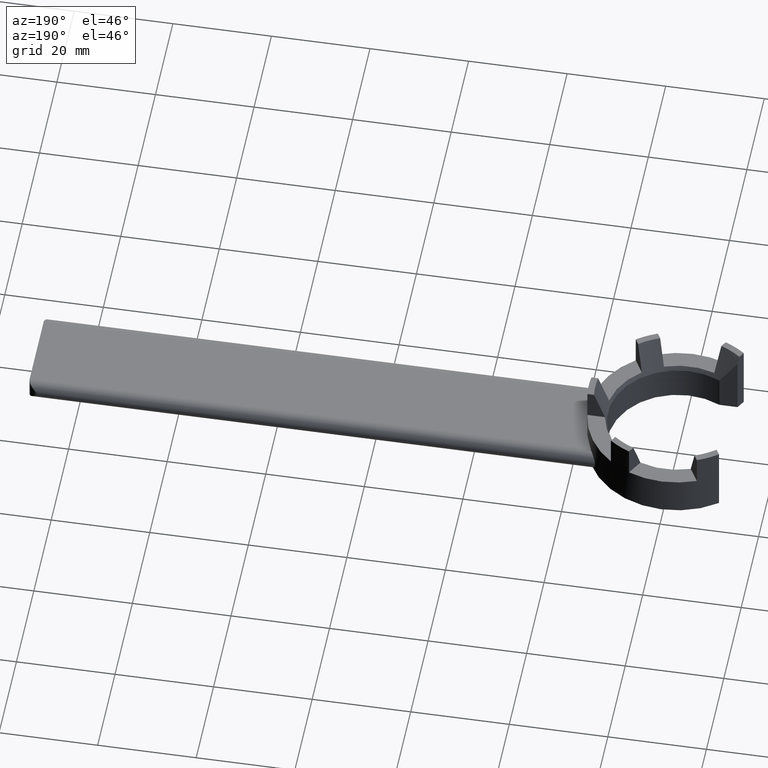
[diagram: clean part render]
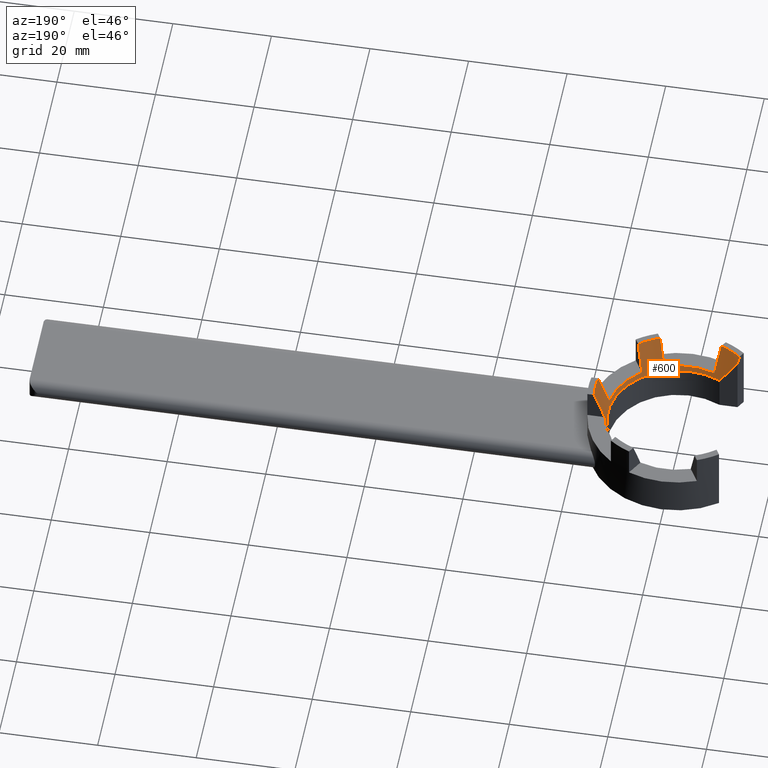
[diagram: same view with one face highlighted and labeled with its STEP entity id]
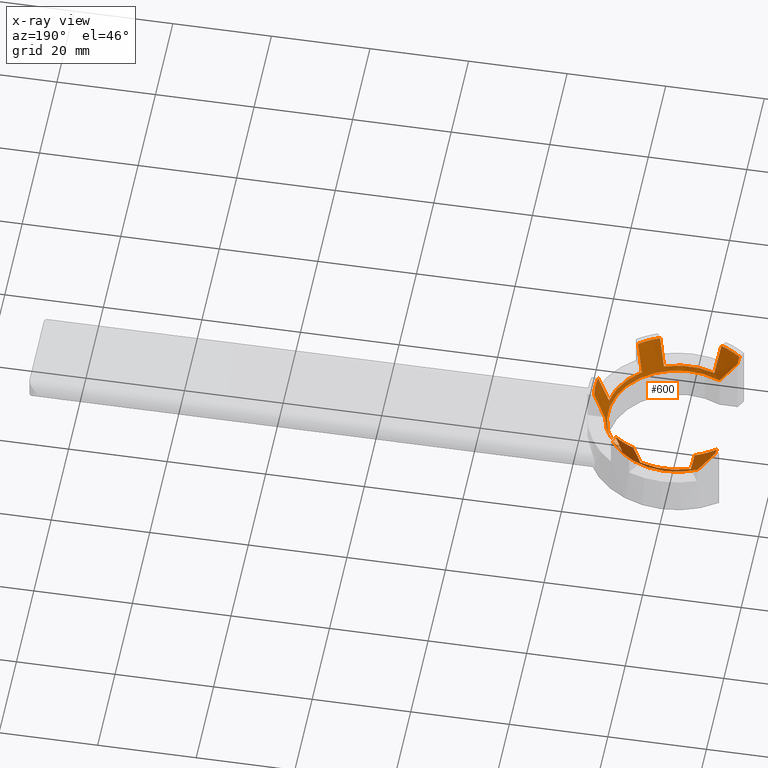
[diagram: x-ray of the same camera — body ghosted, the highlighted face saturated]
A machine part, auxiliary view. The second image highlights one B-rep face of the part: STEP entity #600.
The next image is the same camera in x-ray: the body ghosted, the highlighted face saturated — about 0% of this face is hidden behind the body in this view.
In plain terms, the highlighted conical surface has half-angle 20 deg.
Its self-contained STEP definition (entity closure, byte-faithful):
#96=CIRCLE('',#1077,14.1);
#97=CIRCLE('',#1078,16.65);
#98=CIRCLE('',#1079,14.4661785944028);
#99=CIRCLE('',#1080,16.65);
#100=CIRCLE('',#1081,14.4661785944028);
#101=CIRCLE('',#1082,16.65);
#102=CIRCLE('',#1083,14.4661785944028);
#103=CIRCLE('',#1084,16.65);
#104=CIRCLE('',#1085,14.4661785944028);
#105=CIRCLE('',#1086,16.65);
#119=(
BOUNDED_CURVE()
B_SPLINE_CURVE(2,(#838,#839,#840),.UNSPECIFIED.,.F.,.U.)
B_SPLINE_CURVE_WITH_KNOTS((3,3),(1.16521965065809,7.5947729396406),
 .UNSPECIFIED.)
CURVE()
GEOMETRIC_REPRESENTATION_ITEM()
RATIONAL_B_SPLINE_CURVE((1.00358761468134,1.01213205879889,1.0057386203851))
REPRESENTATION_ITEM('')
);
#120=(
BOUNDED_CURVE()
B_SPLINE_CURVE(2,(#845,#846,#847),.UNSPECIFIED.,.F.,.U.)
B_SPLINE_CURVE_WITH_KNOTS((3,3),(2.09105406984365,8.52060735882623),
 .UNSPECIFIED.)
CURVE()
GEOMETRIC_REPRESENTATION_ITEM()
RATIONAL_B_SPLINE_CURVE((1.0057386203851,1.01213205879887,1.00358761468133))
REPRESENTATION_ITEM('')
);
#121=(
BOUNDED_CURVE()
B_SPLINE_CURVE(2,(#849,#850,#851),.UNSPECIFIED.,.F.,.U.)
B_SPLINE_CURVE_WITH_KNOTS((3,3),(1.30238798375389,2.97414450343107),
 .UNSPECIFIED.)
CURVE()
GEOMETRIC_REPRESENTATION_ITEM()
RATIONAL_B_SPLINE_CURVE((1.00044412135791,1.00060787198154,1.00046024894192))
REPRESENTATION_ITEM('')
);
#122=(
BOUNDED_CURVE()
B_SPLINE_CURVE(2,(#855,#856,#857),.UNSPECIFIED.,.F.,.U.)
B_SPLINE_CURVE_WITH_KNOTS((3,3),(1.23235449962897,7.61757274697505),
 .UNSPECIFIED.)
CURVE()
GEOMETRIC_REPRESENTATION_ITEM()
RATIONAL_B_SPLINE_CURVE((1.00120263872427,1.00382930391001,1.00138905098697))
REPRESENTATION_ITEM('')
);
#123=(
BOUNDED_CURVE()
B_SPLINE_CURVE(2,(#861,#862,#863),.UNSPECIFIED.,.F.,.U.)
B_SPLINE_CURVE_WITH_KNOTS((3,3),(1.46726711424918,7.85248536160198),
 .UNSPECIFIED.)
CURVE()
GEOMETRIC_REPRESENTATION_ITEM()
RATIONAL_B_SPLINE_CURVE((1.00138905098491,1.00382930390449,1.00120263872258))
REPRESENTATION_ITEM('')
);
#124=(
BOUNDED_CURVE()
B_SPLINE_CURVE(2,(#867,#868,#869),.UNSPECIFIED.,.F.,.U.)
B_SPLINE_CURVE_WITH_KNOTS((3,3),(1.46726711426512,7.85248536161977),
 .UNSPECIFIED.)
CURVE()
GEOMETRIC_REPRESENTATION_ITEM()
RATIONAL_B_SPLINE_CURVE((1.00138905098606,1.00382930390763,1.00120263872355))
REPRESENTATION_ITEM('')
);
#125=(
BOUNDED_CURVE()
B_SPLINE_CURVE(2,(#873,#874,#875),.UNSPECIFIED.,.F.,.U.)
B_SPLINE_CURVE_WITH_KNOTS((3,3),(1.23235449952249,7.61757274687085),
 .UNSPECIFIED.)
CURVE()
GEOMETRIC_REPRESENTATION_ITEM()
RATIONAL_B_SPLINE_CURVE((1.00120263872895,1.0038293039252,1.00138905099256))
REPRESENTATION_ITEM('')
);
#126=(
BOUNDED_CURVE()
B_SPLINE_CURVE(2,(#879,#880,#881),.UNSPECIFIED.,.F.,.U.)
B_SPLINE_CURVE_WITH_KNOTS((3,3),(1.23235449955722,7.61757274690934),
 .UNSPECIFIED.)
CURVE()
GEOMETRIC_REPRESENTATION_ITEM()
RATIONAL_B_SPLINE_CURVE((1.00120263872799,1.00382930392206,1.00138905099139))
REPRESENTATION_ITEM('')
);
#127=(
BOUNDED_CURVE()
B_SPLINE_CURVE(2,(#885,#886,#887),.UNSPECIFIED.,.F.,.U.)
B_SPLINE_CURVE_WITH_KNOTS((3,3),(1.46726711425112,7.85248536160041),
 .UNSPECIFIED.)
CURVE()
GEOMETRIC_REPRESENTATION_ITEM()
RATIONAL_B_SPLINE_CURVE((1.00138905098433,1.00382930390287,1.00120263872207))
REPRESENTATION_ITEM('')
);
#128=(
BOUNDED_CURVE()
B_SPLINE_CURVE(2,(#891,#892,#893),.UNSPECIFIED.,.F.,.U.)
B_SPLINE_CURVE_WITH_KNOTS((3,3),(1.23235449967473,7.61757274701534),
 .UNSPECIFIED.)
CURVE()
GEOMETRIC_REPRESENTATION_ITEM()
RATIONAL_B_SPLINE_CURVE((1.00120263872169,1.00382930390168,1.00138905098392))
REPRESENTATION_ITEM('')
);
#129=(
BOUNDED_CURVE()
B_SPLINE_CURVE(2,(#897,#898,#899),.UNSPECIFIED.,.F.,.U.)
B_SPLINE_CURVE_WITH_KNOTS((3,3),(1.46726711426749,7.85248536160569),
 .UNSPECIFIED.)
CURVE()
GEOMETRIC_REPRESENTATION_ITEM()
RATIONAL_B_SPLINE_CURVE((1.00138905098298,1.00382930389911,1.00120263872089))
REPRESENTATION_ITEM('')
);
#130=(
BOUNDED_CURVE()
B_SPLINE_CURVE(2,(#903,#904,#905),.UNSPECIFIED.,.F.,.U.)
B_SPLINE_CURVE_WITH_KNOTS((3,3),(1.38897653224902,3.06073305192669),
 .UNSPECIFIED.)
CURVE()
GEOMETRIC_REPRESENTATION_ITEM()
RATIONAL_B_SPLINE_CURVE((1.00046024891826,1.00060787195043,1.00044412133529))
REPRESENTATION_ITEM('')
);
#131=CONICAL_SURFACE('',#1076,16.65,0.349065850398866);
#143=VERTEX_POINT('',#841);
#144=VERTEX_POINT('',#842);
#145=VERTEX_POINT('',#844);
#146=VERTEX_POINT('',#848);
#147=VERTEX_POINT('',#852);
#148=VERTEX_POINT('',#854);
#149=VERTEX_POINT('',#858);
#150=VERTEX_POINT('',#860);
#151=VERTEX_POINT('',#864);
#152=VERTEX_POINT('',#866);
#153=VERTEX_POINT('',#870);
#154=VERTEX_POINT('',#872);
#155=VERTEX_POINT('',#876);
#156=VERTEX_POINT('',#878);
#157=VERTEX_POINT('',#882);
#158=VERTEX_POINT('',#884);
#159=VERTEX_POINT('',#888);
#160=VERTEX_POINT('',#890);
#161=VERTEX_POINT('',#894);
#162=VERTEX_POINT('',#896);
#163=VERTEX_POINT('',#900);
#164=VERTEX_POINT('',#902);
#287=EDGE_CURVE('',#143,#144,#119,.T.);
#288=EDGE_CURVE('',#144,#145,#96,.T.);
#289=EDGE_CURVE('',#145,#146,#120,.T.);
#290=EDGE_CURVE('',#147,#146,#121,.T.);
#291=EDGE_CURVE('',#148,#147,#97,.T.);
#292=EDGE_CURVE('',#149,#148,#122,.F.);
#293=EDGE_CURVE('',#149,#150,#98,.F.);
#294=EDGE_CURVE('',#151,#150,#123,.F.);
#295=EDGE_CURVE('',#152,#151,#99,.T.);
#296=EDGE_CURVE('',#152,#153,#124,.F.);
#297=EDGE_CURVE('',#154,#153,#100,.F.);
#298=EDGE_CURVE('',#154,#155,#125,.F.);
#299=EDGE_CURVE('',#156,#155,#101,.T.);
#300=EDGE_CURVE('',#157,#156,#126,.F.);
#301=EDGE_CURVE('',#157,#158,#102,.F.);
#302=EDGE_CURVE('',#159,#158,#127,.F.);
#303=EDGE_CURVE('',#160,#159,#103,.T.);
#304=EDGE_CURVE('',#161,#160,#128,.F.);
#305=EDGE_CURVE('',#161,#162,#104,.F.);
#306=EDGE_CURVE('',#163,#162,#129,.F.);
#307=EDGE_CURVE('',#164,#163,#105,.T.);
#308=EDGE_CURVE('',#143,#164,#130,.T.);
#372=ORIENTED_EDGE('',*,*,#287,.T.);
#373=ORIENTED_EDGE('',*,*,#288,.T.);
#374=ORIENTED_EDGE('',*,*,#289,.T.);
#375=ORIENTED_EDGE('',*,*,#290,.F.);
#376=ORIENTED_EDGE('',*,*,#291,.F.);
#377=ORIENTED_EDGE('',*,*,#292,.F.);
#378=ORIENTED_EDGE('',*,*,#293,.T.);
#379=ORIENTED_EDGE('',*,*,#294,.F.);
#380=ORIENTED_EDGE('',*,*,#295,.F.);
#381=ORIENTED_EDGE('',*,*,#296,.T.);
#382=ORIENTED_EDGE('',*,*,#297,.F.);
#383=ORIENTED_EDGE('',*,*,#298,.T.);
#384=ORIENTED_EDGE('',*,*,#299,.F.);
#385=ORIENTED_EDGE('',*,*,#300,.F.);
#386=ORIENTED_EDGE('',*,*,#301,.T.);
#387=ORIENTED_EDGE('',*,*,#302,.F.);
#388=ORIENTED_EDGE('',*,*,#303,.F.);
#389=ORIENTED_EDGE('',*,*,#304,.F.);
#390=ORIENTED_EDGE('',*,*,#305,.T.);
#391=ORIENTED_EDGE('',*,*,#306,.F.);
#392=ORIENTED_EDGE('',*,*,#307,.F.);
#393=ORIENTED_EDGE('',*,*,#308,.F.);
#538=EDGE_LOOP('',(#372,#373,#374,#375,#376,#377,#378,#379,#380,#381,#382,
#383,#384,#385,#386,#387,#388,#389,#390,#391,#392,#393));
#569=FACE_BOUND('',#538,.T.);
#600=ADVANCED_FACE('',(#569),#131,.F.);
#648=DIRECTION('',(0.,0.,1.));
#649=DIRECTION('',(16.65,0.,0.));
#650=DIRECTION('',(0.,0.,-1.));
#651=DIRECTION('',(14.1,0.,0.));
#652=DIRECTION('',(0.,0.,-1.));
#653=DIRECTION('',(16.65,0.,0.));
#654=DIRECTION('',(0.,0.,-1.));
#655=DIRECTION('',(14.4661785944028,0.,0.));
#656=DIRECTION('',(0.,0.,-1.));
#657=DIRECTION('',(16.65,0.,0.));
#658=DIRECTION('',(0.,0.,1.));
#659=DIRECTION('',(14.4661785944028,0.,0.));
#660=DIRECTION('',(0.,0.,-1.));
#661=DIRECTION('',(16.65,0.,0.));
#662=DIRECTION('',(0.,0.,-1.));
#663=DIRECTION('',(14.4661785944028,0.,0.));
#664=DIRECTION('',(0.,0.,-1.));
#665=DIRECTION('',(16.65,0.,0.));
#666=DIRECTION('',(0.,0.,-1.));
#667=DIRECTION('',(14.4661785944028,0.,0.));
#668=DIRECTION('',(0.,0.,-1.));
#669=DIRECTION('',(16.65,0.,0.));
#837=CARTESIAN_POINT('',(0.,0.,14.));
#838=CARTESIAN_POINT('',(-9.98815965698051,12.6,12.4302584672532));
#839=CARTESIAN_POINT('',(-8.03836091683056,12.6,9.10244082716159));
#840=CARTESIAN_POINT('',(-6.32850693291864,12.6,6.99393258039064));
#841=CARTESIAN_POINT('',(-9.98815965698051,12.6,12.4302584672532));
#842=CARTESIAN_POINT('',(-6.3285069329187,12.6,6.99393258039072));
#843=CARTESIAN_POINT('',(0.,0.,6.99393258039072));
#844=CARTESIAN_POINT('',(-6.32850693291869,-12.6,6.99393258039072));
#845=CARTESIAN_POINT('',(-6.32850693291863,-12.6,6.99393258039064));
#846=CARTESIAN_POINT('',(-8.03836091683059,-12.6,9.10244082716164));
#847=CARTESIAN_POINT('',(-9.98815965698057,-12.6,12.4302584672533));
#848=CARTESIAN_POINT('',(-9.98815965698057,-12.6,12.4302584672533));
#849=CARTESIAN_POINT('',(-10.2768221525493,-13.0999781085646,14.));
#850=CARTESIAN_POINT('',(-10.1299713363664,-12.8456250338028,13.2011392688766));
#851=CARTESIAN_POINT('',(-9.9881596569806,-12.6,12.4302584672533));
#852=CARTESIAN_POINT('',(-10.2768221525493,-13.0999781085646,14.));
#853=CARTESIAN_POINT('',(0.,0.,14.));
#854=CARTESIAN_POINT('',(-6.20650275476238,-15.4499781085646,14.));
#855=CARTESIAN_POINT('',(-6.20650275476238,-15.4499781085646,14.));
#856=CARTESIAN_POINT('',(-5.6154143624127,-14.4261829812508,10.7845101747143));
#857=CARTESIAN_POINT('',(-5.10185338651488,-13.5366692782111,8.));
#858=CARTESIAN_POINT('',(-5.10185338651488,-13.5366692782111,8.));
#859=CARTESIAN_POINT('',(0.,0.,8.));
#860=CARTESIAN_POINT('',(5.10185338651486,-13.5366692782111,8.00000000000001));
#861=CARTESIAN_POINT('',(5.10185338651486,-13.5366692782111,8.00000000000001));
#862=CARTESIAN_POINT('',(5.61541436243446,-14.4261829812885,10.7845101748325));
#863=CARTESIAN_POINT('',(6.2065027547624,-15.4499781085647,14.));
#864=CARTESIAN_POINT('',(6.2065027547624,-15.4499781085647,14.));
#865=CARTESIAN_POINT('',(0.,0.,14.));
#866=CARTESIAN_POINT('',(10.2768221525493,-13.0999781085647,14.));
#867=CARTESIAN_POINT('',(9.17217278430173,-11.1866692782111,8.00000000000001));
#868=CARTESIAN_POINT('',(9.68573376021557,-12.0761829812785,10.7845101748012));
#869=CARTESIAN_POINT('',(10.2768221525493,-13.0999781085647,14.));
#870=CARTESIAN_POINT('',(9.17217278430173,-11.1866692782111,8.00000000000001));
#871=CARTESIAN_POINT('',(0.,0.,8.));
#872=CARTESIAN_POINT('',(14.2740261708167,-2.35000000000002,7.99999999999998));
#873=CARTESIAN_POINT('',(16.4833249073116,-2.35000000000003,14.));
#874=CARTESIAN_POINT('',(15.3011481225408,-2.35000000000002,10.7845101745202));
#875=CARTESIAN_POINT('',(14.2740261708167,-2.35000000000002,7.99999999999998));
#876=CARTESIAN_POINT('',(16.4833249073116,-2.35000000000003,14.));
#877=CARTESIAN_POINT('',(0.,0.,14.));
#878=CARTESIAN_POINT('',(16.4833249073116,2.34999999999997,14.));
#879=CARTESIAN_POINT('',(16.4833249073116,2.34999999999997,14.));
#880=CARTESIAN_POINT('',(15.3011481225654,2.34999999999998,10.7845101745871));
#881=CARTESIAN_POINT('',(14.2740261708166,2.34999999999998,7.99999999999998));
#882=CARTESIAN_POINT('',(14.2740261708167,2.34999999999998,7.99999999999998));
#883=CARTESIAN_POINT('',(0.,0.,8.));
#884=CARTESIAN_POINT('',(9.17217278430175,11.186669278211,8.00000000000001));
#885=CARTESIAN_POINT('',(9.17217278430175,11.186669278211,8.00000000000001));
#886=CARTESIAN_POINT('',(9.68573376022138,12.0761829812885,10.7845101748326));
#887=CARTESIAN_POINT('',(10.2768221525493,13.0999781085646,14.));
#888=CARTESIAN_POINT('',(10.2768221525493,13.0999781085646,14.));
#889=CARTESIAN_POINT('',(0.,0.,14.));
#890=CARTESIAN_POINT('',(6.20650275476241,15.4499781085647,14.));
#891=CARTESIAN_POINT('',(6.20650275476241,15.4499781085647,14.));
#892=CARTESIAN_POINT('',(5.61541436242742,14.4261829812763,10.7845101747942));
#893=CARTESIAN_POINT('',(5.10185338651488,13.5366692782111,8.00000000000001));
#894=CARTESIAN_POINT('',(5.10185338651488,13.5366692782111,8.00000000000001));
#895=CARTESIAN_POINT('',(0.,0.,8.));
#896=CARTESIAN_POINT('',(-5.10185338651483,13.5366692782111,8.00000000000001));
#897=CARTESIAN_POINT('',(-5.10185338651483,13.5366692782111,8.00000000000001));
#898=CARTESIAN_POINT('',(-5.61541436243105,14.4261829812826,10.7845101748142));
#899=CARTESIAN_POINT('',(-6.20650275476236,15.4499781085647,14.));
#900=CARTESIAN_POINT('',(-6.20650275476236,15.4499781085647,14.));
#901=CARTESIAN_POINT('',(0.,0.,14.));
#902=CARTESIAN_POINT('',(-10.2768221525492,13.0999781085647,14.));
#903=CARTESIAN_POINT('',(-9.98815965698051,12.6,12.4302584672532));
#904=CARTESIAN_POINT('',(-10.1299713363989,12.8456250338593,13.2011392690537));
#905=CARTESIAN_POINT('',(-10.2768221525492,13.0999781085647,14.));
#1076=AXIS2_PLACEMENT_3D('',#837,#648,#649);
#1077=AXIS2_PLACEMENT_3D('',#843,#650,#651);
#1078=AXIS2_PLACEMENT_3D('',#853,#652,#653);
#1079=AXIS2_PLACEMENT_3D('',#859,#654,#655);
#1080=AXIS2_PLACEMENT_3D('',#865,#656,#657);
#1081=AXIS2_PLACEMENT_3D('',#871,#658,#659);
#1082=AXIS2_PLACEMENT_3D('',#877,#660,#661);
#1083=AXIS2_PLACEMENT_3D('',#883,#662,#663);
#1084=AXIS2_PLACEMENT_3D('',#889,#664,#665);
#1085=AXIS2_PLACEMENT_3D('',#895,#666,#667);
#1086=AXIS2_PLACEMENT_3D('',#901,#668,#669);